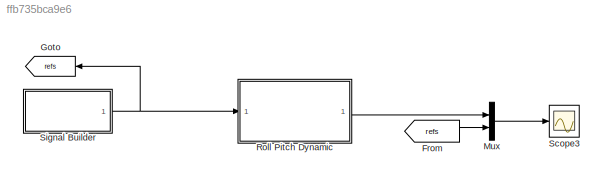
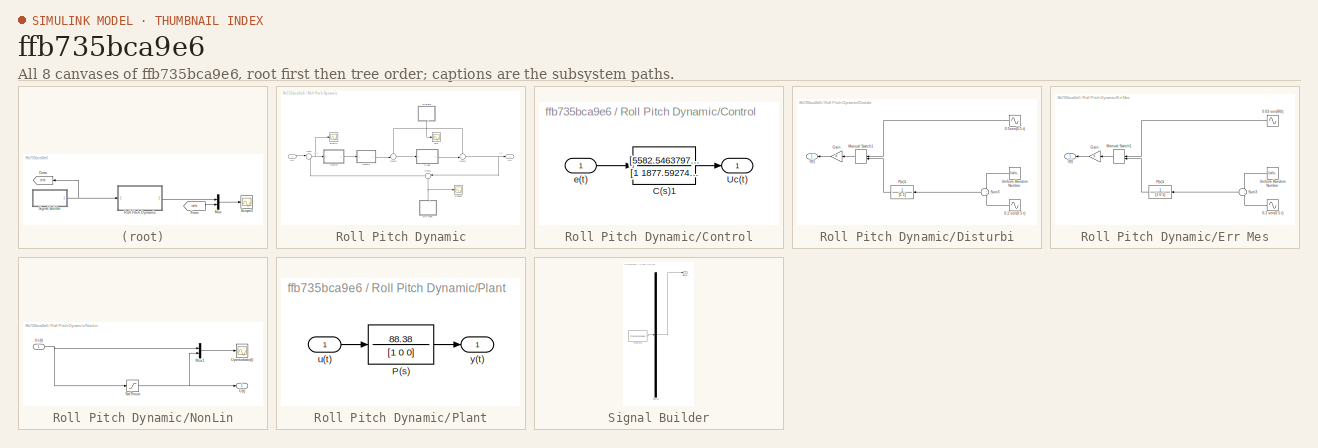
[diagram: thumbnail index - all 8 canvases of the model, root first then tree order]
MODEL slx_ffb735bca9e6
KIND model
BLOCK [From] From
  GotoTag = refs
BLOCK [Goto] Goto
  GotoTag = refs
BLOCK [Mux] Mux
  DisplayOption = bar
  Inputs = 2
  Ports = [2, 1]
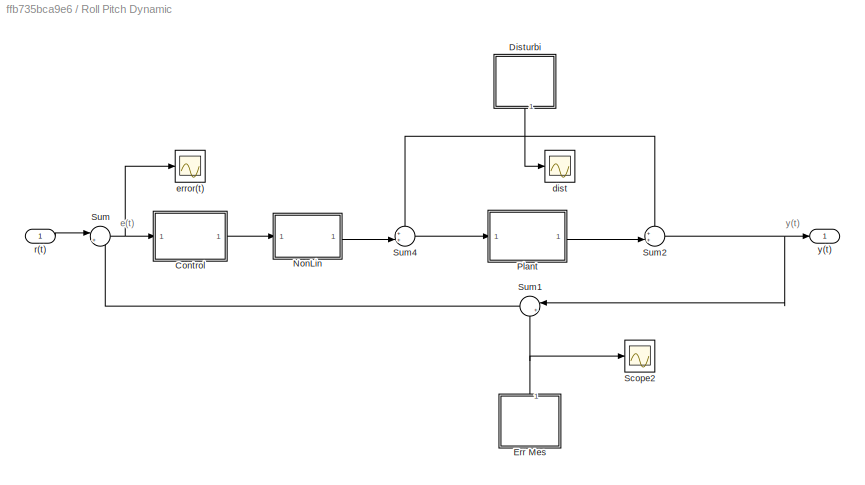
BLOCK [SubSystem] Roll Pitch Dynamic
  Ports = [1, 1]
  RequestExecContextInheritance = off
BLOCK [SubSystem] Roll Pitch Dynamic/Control
  Ports = [1, 1]
  RequestExecContextInheritance = off
BLOCK [TransferFcn] Roll Pitch Dynamic/Control/C(s)1
  Denominator = [1 1877.59274550691 0]
  Numerator = [5582.54637971166 77190.9890523944 0]
BLOCK [Outport] Roll Pitch Dynamic/Control/Uc(t)
  IconDisplay = Port number
BLOCK [Inport] Roll Pitch Dynamic/Control/e(t)
  IconDisplay = Port number
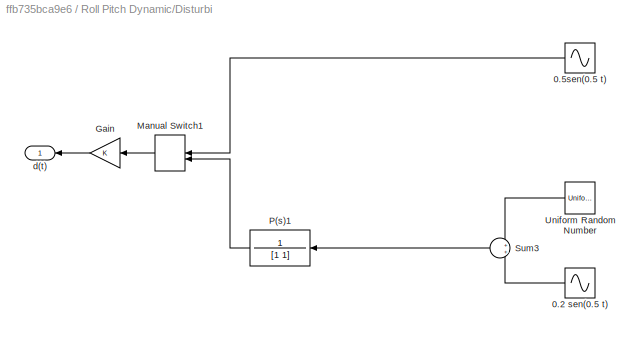
BLOCK [SubSystem] Roll Pitch Dynamic/Disturbi
  Ports = [0, 1]
  RequestExecContextInheritance = off
BLOCK [Outport] Roll Pitch Dynamic/Disturbi/  d(t)
  IconDisplay = Port number
BLOCK [Sin] Roll Pitch Dynamic/Disturbi/0.2 sen(0.5 t)
  Amplitude = 0.2
  Frequency = 0.4
  Phase = 1
  Ports = [0, 1]
  SampleTime = 0
BLOCK [Sin] Roll Pitch Dynamic/Disturbi/0.5sen(0.5 t)
  Amplitude = 0.5
  Frequency = 0.5
  Phase = 1
  Ports = [0, 1]
  SampleTime = 0
BLOCK [Gain] Roll Pitch Dynamic/Disturbi/Gain
  OutDataTypeStr = Inherit: Inherit via internal rule
  ParamDataTypeStr = Inherit: Inherit via internal rule
  SaturateOnIntegerOverflow = off
BLOCK [ManualSwitch] Roll Pitch Dynamic/Disturbi/Manual Switch1
  CurrentSetting = 0
BLOCK [TransferFcn] Roll Pitch Dynamic/Disturbi/P(s)1
  Denominator = [1 1]
  Numerator = 1
BLOCK [Sum] Roll Pitch Dynamic/Disturbi/Sum3
  IconShape = round
  InputSameDT = off
  OutDataTypeStr = Inherit: Inherit via internal rule
  Ports = [2, 1]
  SaturateOnIntegerOverflow = off
BLOCK [UniformRandomNumber] Roll Pitch Dynamic/Disturbi/Uniform Random Number
  Maximum = 0.5
  Minimum = -0.5
  SampleTime = 0.1
BLOCK [SubSystem] Roll Pitch Dynamic/Err Mes
  Ports = [0, 1]
  RequestExecContextInheritance = off
BLOCK [Outport] Roll Pitch Dynamic/Err Mes/  d(t)
  IconDisplay = Port number
BLOCK [Sin] Roll Pitch Dynamic/Err Mes/0.03 sen(80t)
  Amplitude = 0.003
  Frequency = 80
  Phase = 1
  Ports = [0, 1]
  SampleTime = 0
BLOCK [Sin] Roll Pitch Dynamic/Err Mes/0.2 sen(0.5 t)
  Amplitude = 0.02
  Frequency = 50
  Phase = 1
  Ports = [0, 1]
  SampleTime = 0
BLOCK [Gain] Roll Pitch Dynamic/Err Mes/Gain
  OutDataTypeStr = Inherit: Inherit via internal rule
  ParamDataTypeStr = Inherit: Inherit via internal rule
  SaturateOnIntegerOverflow = off
BLOCK [ManualSwitch] Roll Pitch Dynamic/Err Mes/Manual Switch1
  CurrentSetting = 0
BLOCK [TransferFcn] Roll Pitch Dynamic/Err Mes/P(s)1
  Denominator = [1 0.1]
  Numerator = 1
BLOCK [Sum] Roll Pitch Dynamic/Err Mes/Sum3
  IconShape = round
  InputSameDT = off
  OutDataTypeStr = Inherit: Inherit via internal rule
  Ports = [2, 1]
  SaturateOnIntegerOverflow = off
BLOCK [UniformRandomNumber] Roll Pitch Dynamic/Err Mes/Uniform Random Number
  Maximum = 0.05
  Minimum = -0.05
  SampleTime = 0.1
BLOCK [SubSystem] Roll Pitch Dynamic/NonLin
  Ports = [1, 1]
  RequestExecContextInheritance = off
BLOCK [Mux] Roll Pitch Dynamic/NonLin/Mux1
  DisplayOption = bar
  Inputs = 2
  Ports = [2, 1]
BLOCK [Saturate] Roll Pitch Dynamic/NonLin/SatThrust
  InputPortMap = u0
  LowerLimit = -6
  Ports = [1, 1]
  UpperLimit = satThrust
BLOCK [Outport] Roll Pitch Dynamic/NonLin/U(t)
  IconDisplay = Port number
BLOCK [Inport] Roll Pitch Dynamic/NonLin/Uc(t)
  IconDisplay = Port number
BLOCK [Scope] Roll Pitch Dynamic/NonLin/Uperturbato(t)
  DataFormat = StructureWithTime
  Floating = off
  LimitDataPoints = off
  NumInputPorts = 1
  Ports = [1]
  SampleTime = 0
  SaveName = ScopeData5
  ShowLegends = on
  TimeRange = 15
  YMax = 250000
  YMin = -150000
BLOCK [SubSystem] Roll Pitch Dynamic/Plant
  Ports = [1, 1]
  RequestExecContextInheritance = off
BLOCK [TransferFcn] Roll Pitch Dynamic/Plant/P(s)
  Denominator = [1 0 0]
  Numerator = 88.38
BLOCK [Inport] Roll Pitch Dynamic/Plant/u(t)
  IconDisplay = Port number
BLOCK [Outport] Roll Pitch Dynamic/Plant/y(t)
  IconDisplay = Port number
BLOCK [Scope] Roll Pitch Dynamic/Scope2
  DataFormat = StructureWithTime
  Floating = off
  LimitDataPoints = off
  NumInputPorts = 1
  Ports = [1]
  SampleTime = 0
  SaveName = ScopeData2
  ShowLegends = off
BLOCK [Sum] Roll Pitch Dynamic/Sum
  IconShape = round
  InputSameDT = off
  Inputs = |+-
  OutDataTypeStr = Inherit: Inherit via internal rule
  Ports = [2, 1]
  SaturateOnIntegerOverflow = off
BLOCK [Sum] Roll Pitch Dynamic/Sum1
  IconShape = round
  InputSameDT = off
  Inputs = |++
  OutDataTypeStr = Inherit: Inherit via internal rule
  Ports = [2, 1]
  SaturateOnIntegerOverflow = off
BLOCK [Sum] Roll Pitch Dynamic/Sum2
  IconShape = round
  InputSameDT = off
  Inputs = ++|
  OutDataTypeStr = Inherit: Inherit via internal rule
  Ports = [2, 1]
  SaturateOnIntegerOverflow = off
BLOCK [Sum] Roll Pitch Dynamic/Sum4
  IconShape = round
  InputSameDT = off
  Inputs = ++|
  OutDataTypeStr = Inherit: Inherit via internal rule
  Ports = [2, 1]
  SaturateOnIntegerOverflow = off
BLOCK [Scope] Roll Pitch Dynamic/dist
  DataFormat = StructureWithTime
  Floating = off
  LimitDataPoints = off
  NumInputPorts = 1
  Ports = [1]
  SampleTime = 0
  SaveName = ScopeData1
  ShowLegends = off
BLOCK [Scope] Roll Pitch Dynamic/error(t)
  DataFormat = StructureWithTime
  Floating = off
  NumInputPorts = 1
  Ports = [1]
  SampleTime = 0
  SaveName = ScopeData4
  ShowLegends = off
BLOCK [Inport] Roll Pitch Dynamic/r(t)
  IconDisplay = Port number
BLOCK [Outport] Roll Pitch Dynamic/y(t)
  IconDisplay = Port number
BLOCK [Scope] Scope3
  DataFormat = StructureWithTime
  Floating = off
  LimitDataPoints = off
  NumInputPorts = 1
  Ports = [1]
  SampleTime = 0
  ShowLegends = off
  ZoomMode = xonly
BLOCK [SubSystem] Signal Builder
  ClipboardFcn = sigbuilder_block('clipboard');
  CloseFcn = sigbuilder_block('close');
  ContinueFcn = sigbuilder_block('continue');
  CopyFcn = sigbuilder_block('copy');
  DeleteFcn = sigbuilder_block('delete');
  LoadFcn = sigbuilder_block('load');
  MaskHideContents = on
  ModelCloseFcn = sigbuilder_block('modelClose');
  NameChangeFcn = sigbuilder_block('namechange');
  OpenFcn = sigbuilder_block('open',[265.6 120.8 550.4 400 ]);
  PauseFcn = sigbuilder_block('pause');
  Ports = [0, 1]
  PreSaveFcn = sigbuilder_block('preSave');
  RequestExecContextInheritance = off
  StartFcn = sigbuilder_block('start');
  StopFcn = sigbuilder_block('stop');
  Tag = STV Subsys
BLOCK [Demux] Signal Builder/Demux
  Outputs = 1
  Ports = [1, 1]
  Tag = STV Demux
BLOCK [FromWorkspace] Signal Builder/FromWs
  SampleTime = 0
  Tag = STV FromWs
  VariableName = tuvar
  ZeroCross = on
BLOCK [Outport] Signal Builder/Signal 1
  IconDisplay = Port number
  Tag = STV Outport
ANNOTATION Roll Pitch Dynamic: e(t)
ANNOTATION Roll Pitch Dynamic: y(t)
LINE From:1 -> Mux:2
LINE Mux:1 -> Scope3:1
LINE Roll Pitch Dynamic/Control/C(s)1:1 -> Roll Pitch Dynamic/Control/Uc(t):1
LINE Roll Pitch Dynamic/Control/e(t):1 -> Roll Pitch Dynamic/Control/C(s)1:1
LINE Roll Pitch Dynamic/Control:1 -> Roll Pitch Dynamic/NonLin:1
LINE Roll Pitch Dynamic/Disturbi/0.2 sen(0.5 t):1 -> Roll Pitch Dynamic/Disturbi/Sum3:2
LINE Roll Pitch Dynamic/Disturbi/0.5sen(0.5 t):1 -> Roll Pitch Dynamic/Disturbi/Manual Switch1:1
LINE Roll Pitch Dynamic/Disturbi/Gain:1 -> Roll Pitch Dynamic/Disturbi/  d(t):1
LINE Roll Pitch Dynamic/Disturbi/Manual Switch1:1 -> Roll Pitch Dynamic/Disturbi/Gain:1
LINE Roll Pitch Dynamic/Disturbi/P(s)1:1 -> Roll Pitch Dynamic/Disturbi/Manual Switch1:2
LINE Roll Pitch Dynamic/Disturbi/Sum3:1 -> Roll Pitch Dynamic/Disturbi/P(s)1:1
LINE Roll Pitch Dynamic/Disturbi/Uniform Random Number:1 -> Roll Pitch Dynamic/Disturbi/Sum3:1
NET Roll Pitch Dynamic/Disturbi:1 -> Roll Pitch Dynamic/Sum2:1, Roll Pitch Dynamic/Sum4:1, Roll Pitch Dynamic/dist:1
LINE Roll Pitch Dynamic/Err Mes/0.03 sen(80t):1 -> Roll Pitch Dynamic/Err Mes/Manual Switch1:1
LINE Roll Pitch Dynamic/Err Mes/0.2 sen(0.5 t):1 -> Roll Pitch Dynamic/Err Mes/Sum3:2
LINE Roll Pitch Dynamic/Err Mes/Gain:1 -> Roll Pitch Dynamic/Err Mes/  d(t):1
LINE Roll Pitch Dynamic/Err Mes/Manual Switch1:1 -> Roll Pitch Dynamic/Err Mes/Gain:1
LINE Roll Pitch Dynamic/Err Mes/P(s)1:1 -> Roll Pitch Dynamic/Err Mes/Manual Switch1:2
LINE Roll Pitch Dynamic/Err Mes/Sum3:1 -> Roll Pitch Dynamic/Err Mes/P(s)1:1
LINE Roll Pitch Dynamic/Err Mes/Uniform Random Number:1 -> Roll Pitch Dynamic/Err Mes/Sum3:1
NET Roll Pitch Dynamic/Err Mes:1 -> Roll Pitch Dynamic/Scope2:1, Roll Pitch Dynamic/Sum1:2
LINE Roll Pitch Dynamic/NonLin/Mux1:1 -> Roll Pitch Dynamic/NonLin/Uperturbato(t):1
NET Roll Pitch Dynamic/NonLin/SatThrust:1 -> Roll Pitch Dynamic/NonLin/Mux1:2, Roll Pitch Dynamic/NonLin/U(t):1
NET Roll Pitch Dynamic/NonLin/Uc(t):1 -> Roll Pitch Dynamic/NonLin/Mux1:1, Roll Pitch Dynamic/NonLin/SatThrust:1
LINE Roll Pitch Dynamic/NonLin:1 -> Roll Pitch Dynamic/Sum4:2
LINE Roll Pitch Dynamic/Plant/P(s):1 -> Roll Pitch Dynamic/Plant/y(t):1
LINE Roll Pitch Dynamic/Plant/u(t):1 -> Roll Pitch Dynamic/Plant/P(s):1
LINE Roll Pitch Dynamic/Plant:1 -> Roll Pitch Dynamic/Sum2:2
LINE Roll Pitch Dynamic/Sum1:1 -> Roll Pitch Dynamic/Sum:2
NET Roll Pitch Dynamic/Sum2:1 -> Roll Pitch Dynamic/Sum1:1, Roll Pitch Dynamic/y(t):1
LINE Roll Pitch Dynamic/Sum4:1 -> Roll Pitch Dynamic/Plant:1
NET Roll Pitch Dynamic/Sum:1 -> Roll Pitch Dynamic/Control:1, Roll Pitch Dynamic/error(t):1
LINE Roll Pitch Dynamic/r(t):1 -> Roll Pitch Dynamic/Sum:1
LINE Roll Pitch Dynamic:1 -> Mux:1
NET Signal Builder:1 -> Goto:1, Roll Pitch Dynamic:1
note: NET lines group one-source signal fan-out (src -> all destinations, sorted); 1:1 wires keep LINE
